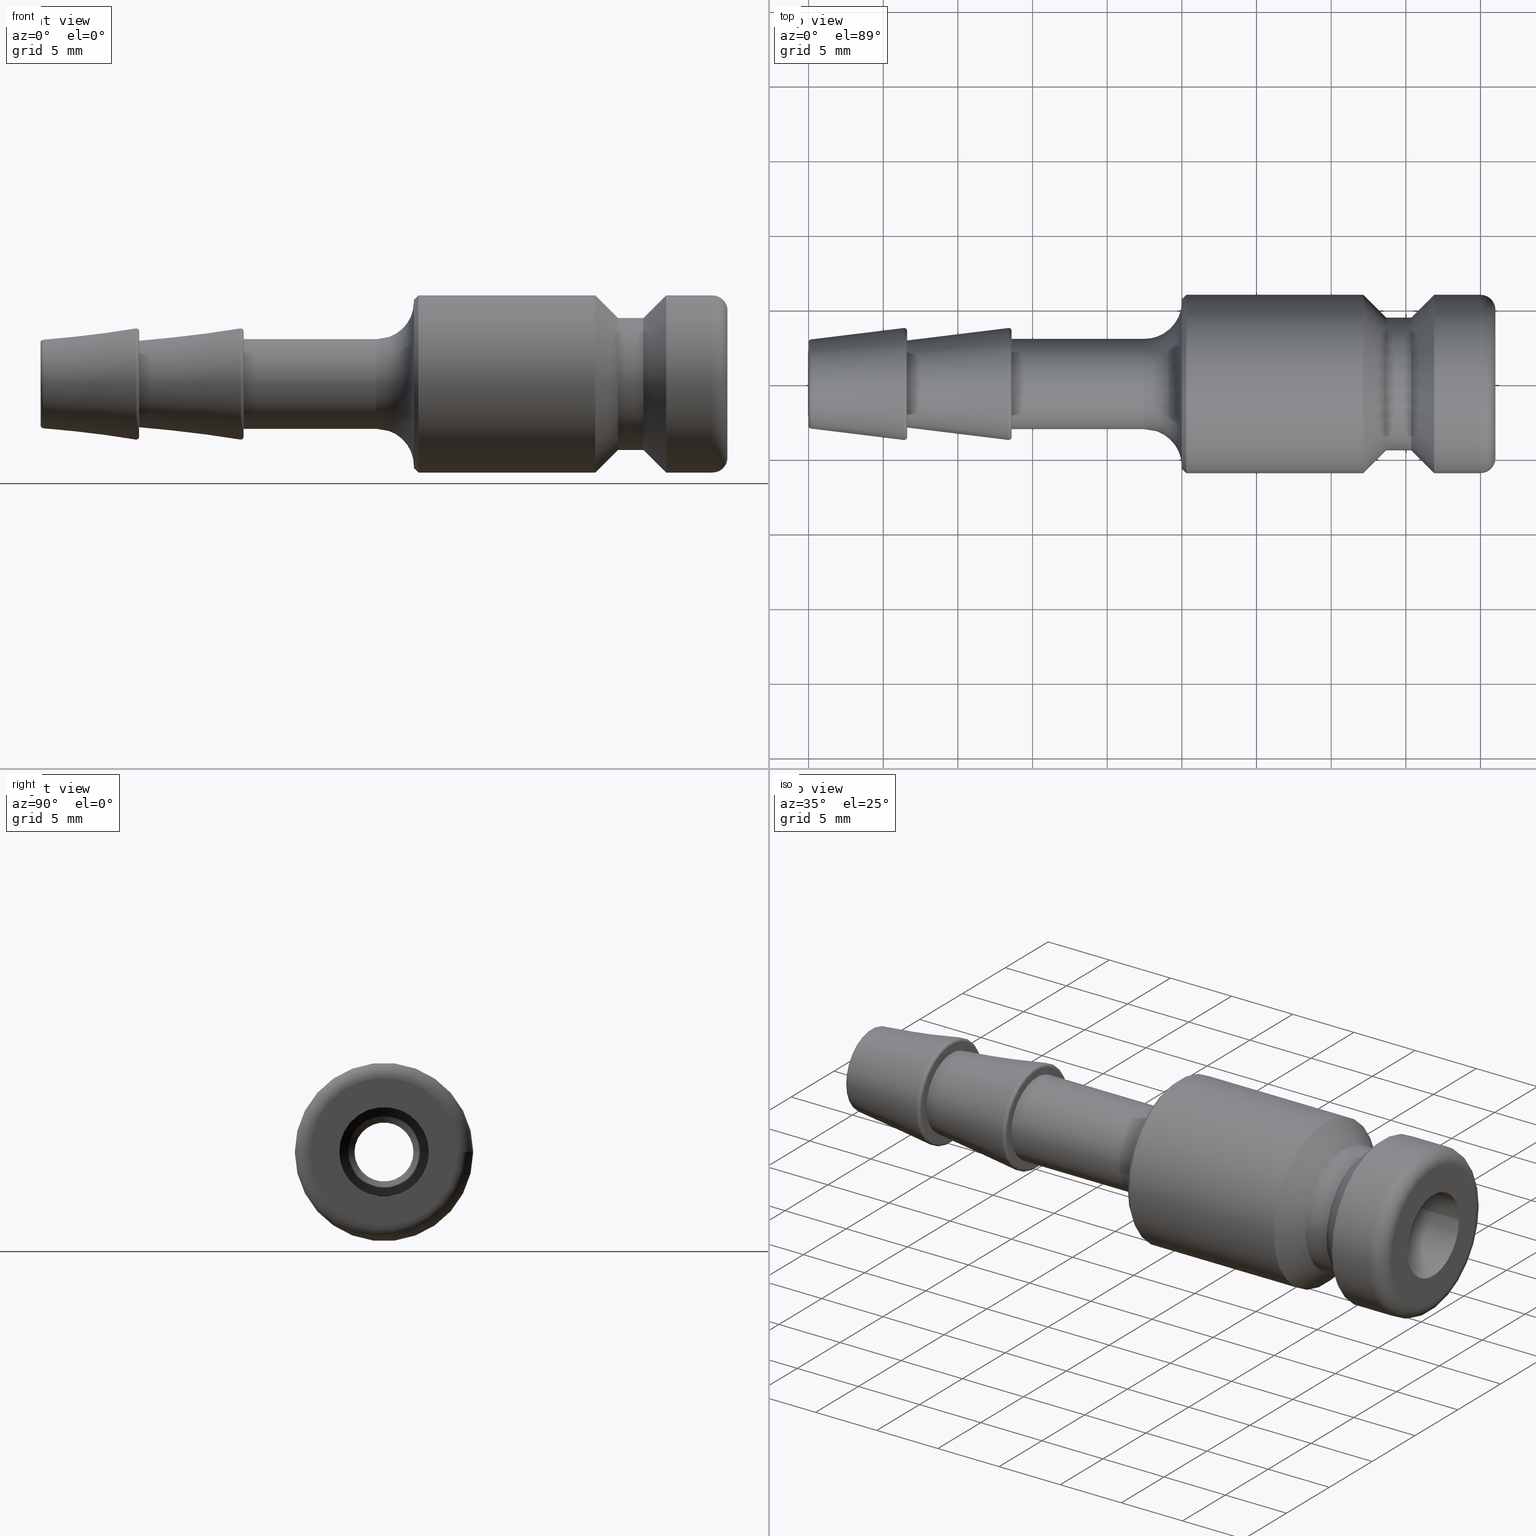
[diagram: canonical four-view strip — front | top / right | iso, engineering-drawing reading convention]
A machine part, canonical four-view strip (front | top / right | iso — engineering-drawing reading convention). The complete STEP part file that produces these views, byte-faithful:
ISO-10303-21;
HEADER;
/****************************************************************
 * Generated by software with PDE/Lib inside                    *
 * PDElib Version v51a, created Thu 01/14/2010                  *
 * ITI Transcendata (http://www.transcendata.com/)              *
 ****************************************************************/
FILE_DESCRIPTION((''),'2;1');
FILE_NAME('J:\\3D Zeichnungen_step\\Serie 52\\52sftf06sxn.stp','2012-12-12T09:20:56',('IA176480'),(''),'Autodesk Inventor 2011','Autodesk Inventor 2011','');
FILE_SCHEMA(('AUTOMOTIVE_DESIGN { 1 0 10303 214 1 1 1 1 }'));
ENDSEC;
DATA;
#5=APPLICATION_CONTEXT('automotive design');
#6=APPLICATION_PROTOCOL_DEFINITION('International Standard','automotive_design',2001,#5);
#7=PRODUCT_CONTEXT('',#5,'mechanical');
#8=PRODUCT('D102768','D102768',$,(#7));
#9=PRODUCT_RELATED_PRODUCT_CATEGORY('part',$,(#8));
#10=PRODUCT_DEFINITION_FORMATION('',$,#8);
#11=PRODUCT_DEFINITION_CONTEXT('part definition',#5,'design');
#12=PRODUCT_DEFINITION('',$,#10,#11);
#18=(NAMED_UNIT(*)PLANE_ANGLE_UNIT()SI_UNIT($,.RADIAN.));
#19=DIMENSIONAL_EXPONENTS(0.0,0.0,0.0,0.0,0.0,0.0,0.0);
#20=PLANE_ANGLE_MEASURE_WITH_UNIT(PLANE_ANGLE_MEASURE(0.017453292500000),#18);
#24=(CONVERSION_BASED_UNIT('DEGREE',#20)NAMED_UNIT(#19)PLANE_ANGLE_UNIT());
#28=(NAMED_UNIT(*)SI_UNIT($,.STERADIAN.)SOLID_ANGLE_UNIT());
#32=(LENGTH_UNIT()NAMED_UNIT(*)SI_UNIT(.MILLI.,.METRE.));
#34=UNCERTAINTY_MEASURE_WITH_UNIT(LENGTH_MEASURE(0.010000000000000),#32,'DISTANCE_ACCURACY_VALUE','');
#36=(GEOMETRIC_REPRESENTATION_CONTEXT(3)GLOBAL_UNCERTAINTY_ASSIGNED_CONTEXT((#34))GLOBAL_UNIT_ASSIGNED_CONTEXT((#24,#28,#32))REPRESENTATION_CONTEXT('None','None'));
#37=AXIS2_PLACEMENT_3D('',#38,#39,#40);
#38=CARTESIAN_POINT('',(0.0,0.0,0.0));
#39=DIRECTION('',(0.0,0.0,1.0));
#40=DIRECTION('',(1.0,0.0,0.0));
#41=SHAPE_REPRESENTATION('',(#37),#36);
#42=PRODUCT_DEFINITION_SHAPE('','',#12);
#43=SHAPE_DEFINITION_REPRESENTATION(#42,#41);
#49=(NAMED_UNIT(*)PLANE_ANGLE_UNIT()SI_UNIT($,.RADIAN.));
#50=DIMENSIONAL_EXPONENTS(0.0,0.0,0.0,0.0,0.0,0.0,0.0);
#51=PLANE_ANGLE_MEASURE_WITH_UNIT(PLANE_ANGLE_MEASURE(0.017453292500000),#49);
#55=(CONVERSION_BASED_UNIT('DEGREE',#51)NAMED_UNIT(#50)PLANE_ANGLE_UNIT());
#59=(NAMED_UNIT(*)SI_UNIT($,.STERADIAN.)SOLID_ANGLE_UNIT());
#63=(LENGTH_UNIT()NAMED_UNIT(*)SI_UNIT(.MILLI.,.METRE.));
#65=UNCERTAINTY_MEASURE_WITH_UNIT(LENGTH_MEASURE(0.000001000000000),#63,'DISTANCE_ACCURACY_VALUE','');
#67=(GEOMETRIC_REPRESENTATION_CONTEXT(3)GLOBAL_UNCERTAINTY_ASSIGNED_CONTEXT((#65))GLOBAL_UNIT_ASSIGNED_CONTEXT((#55,#59,#63))REPRESENTATION_CONTEXT('','3D'));
#68=CARTESIAN_POINT('',(22.500000000000000,2.755455E-015,0.0));
#69=DIRECTION('',(1.0,1.224647E-016,0.0));
#70=DIRECTION('',(0.0,0.0,-1.0));
#71=AXIS2_PLACEMENT_3D('',#68,#69,#70);
#72=TOROIDAL_SURFACE('',#71,5.525000000000000,2.500000000000000);
#73=CARTESIAN_POINT('',(22.500000000000000,3.025000000000003,0.0));
#74=VERTEX_POINT('',#73);
#75=CARTESIAN_POINT('',(22.500000000000000,2.755455E-015,0.0));
#76=DIRECTION('',(1.0,0.0,0.0));
#77=DIRECTION('',(0.0,-1.0,0.0));
#78=AXIS2_PLACEMENT_3D('',#75,#76,#77);
#79=CIRCLE('',#78,3.025000000000000);
#80=EDGE_CURVE('',#74,#74,#79,.T.);
#81=ORIENTED_EDGE('',*,*,#80,.T.);
#82=EDGE_LOOP('',(#81));
#83=FACE_OUTER_BOUND('',#82,.T.);
#84=CARTESIAN_POINT('',(25.0,5.525000000000003,-1.353235E-015));
#85=VERTEX_POINT('',#84);
#86=CARTESIAN_POINT('',(25.0,3.061617E-015,0.0));
#87=DIRECTION('',(-1.0,0.0,0.0));
#88=DIRECTION('',(0.0,-1.0,0.0));
#89=AXIS2_PLACEMENT_3D('',#86,#87,#88);
#90=CIRCLE('',#89,5.525000000000000);
#91=EDGE_CURVE('',#85,#85,#90,.T.);
#92=ORIENTED_EDGE('',*,*,#91,.T.);
#93=EDGE_LOOP('',(#92));
#94=FACE_BOUND('',#93,.T.);
#95=ADVANCED_FACE('',(#83,#94),#72,.F.);
#96=CARTESIAN_POINT('',(25.0,4.500000000000004,0.0));
#97=DIRECTION('',(-1.0,0.0,0.0));
#98=DIRECTION('',(0.0,0.0,1.0));
#99=AXIS2_PLACEMENT_3D('',#96,#97,#98);
#100=PLANE('',#99);
#101=CARTESIAN_POINT('',(25.0,5.675000000000006,6.949871E-016));
#102=VERTEX_POINT('',#101);
#103=CARTESIAN_POINT('',(25.0,3.061617E-015,0.0));
#104=DIRECTION('',(1.0,0.0,0.0));
#105=DIRECTION('',(0.0,-1.0,0.0));
#106=AXIS2_PLACEMENT_3D('',#103,#104,#105);
#107=CIRCLE('',#106,5.675000000000003);
#108=EDGE_CURVE('',#102,#102,#107,.T.);
#109=ORIENTED_EDGE('',*,*,#108,.F.);
#110=EDGE_LOOP('',(#109));
#111=FACE_OUTER_BOUND('',#110,.T.);
#112=ORIENTED_EDGE('',*,*,#91,.F.);
#113=EDGE_LOOP('',(#112));
#114=FACE_BOUND('',#113,.T.);
#115=ADVANCED_FACE('',(#111,#114),#100,.T.);
#116=CARTESIAN_POINT('',(19.300000000000001,2.363568E-015,0.0));
#117=DIRECTION('',(1.0,1.224647E-016,0.0));
#118=DIRECTION('',(0.0,1.0,0.0));
#119=AXIS2_PLACEMENT_3D('',#116,#117,#118);
#120=CYLINDRICAL_SURFACE('',#119,3.025000000000000);
#121=CARTESIAN_POINT('',(13.600000000000001,3.025000000000002,0.0));
#122=VERTEX_POINT('',#121);
#123=CARTESIAN_POINT('',(13.600000000000001,1.665520E-015,0.0));
#124=DIRECTION('',(1.0,0.0,0.0));
#125=DIRECTION('',(0.0,1.0,0.0));
#126=AXIS2_PLACEMENT_3D('',#123,#124,#125);
#127=CIRCLE('',#126,3.025000000000000);
#128=EDGE_CURVE('',#122,#122,#127,.T.);
#129=ORIENTED_EDGE('',*,*,#128,.T.);
#130=EDGE_LOOP('',(#129));
#131=FACE_OUTER_BOUND('',#130,.T.);
#132=ORIENTED_EDGE('',*,*,#80,.F.);
#133=EDGE_LOOP('',(#132));
#134=FACE_BOUND('',#133,.T.);
#135=ADVANCED_FACE('',(#131,#134),#120,.T.);
#136=CARTESIAN_POINT('',(0.200000000000001,2.449294E-017,0.0));
#137=DIRECTION('',(1.0,1.224647E-016,0.0));
#138=DIRECTION('',(0.0,0.0,-1.0));
#139=AXIS2_PLACEMENT_3D('',#136,#137,#138);
#140=TOROIDAL_SURFACE('',#139,2.788735722401991,0.200000000000000);
#141=CARTESIAN_POINT('',(-2.927140E-017,2.788735722401991,0.0));
#142=VERTEX_POINT('',#141);
#143=CARTESIAN_POINT('',(3.122502E-016,1.925930E-032,0.0));
#144=DIRECTION('',(1.0,0.0,0.0));
#145=DIRECTION('',(0.0,-1.0,0.0));
#146=AXIS2_PLACEMENT_3D('',#143,#144,#145);
#147=CIRCLE('',#146,2.788735722401991);
#148=EDGE_CURVE('',#142,#142,#147,.T.);
#149=ORIENTED_EDGE('',*,*,#148,.T.);
#150=EDGE_LOOP('',(#149));
#151=FACE_OUTER_BOUND('',#150,.T.);
#152=CARTESIAN_POINT('',(0.175626131318970,2.987244952730256,-7.316640E-016));
#153=VERTEX_POINT('',#152);
#154=CARTESIAN_POINT('',(0.175626131318971,0.0,-3.658320E-016));
#155=DIRECTION('',(-1.0,0.0,0.0));
#156=DIRECTION('',(0.0,-1.0,0.0));
#157=AXIS2_PLACEMENT_3D('',#154,#155,#156);
#158=CIRCLE('',#157,2.987244952730256);
#159=EDGE_CURVE('',#153,#153,#158,.T.);
#160=ORIENTED_EDGE('',*,*,#159,.T.);
#161=EDGE_LOOP('',(#160));
#162=FACE_BOUND('',#161,.T.);
#163=ADVANCED_FACE('',(#151,#162),#140,.T.);
#164=CARTESIAN_POINT('',(3.187813065659486,3.903945E-016,0.0));
#165=DIRECTION('',(1.0,1.224647E-016,0.0));
#166=DIRECTION('',(0.0,1.0,0.0));
#167=AXIS2_PLACEMENT_3D('',#164,#165,#166);
#168=CONICAL_SURFACE('',#167,3.357095002820722,6.999999999999999);
#169=CARTESIAN_POINT('',(6.375626131318971,3.748509230328265,0.0));
#170=VERTEX_POINT('',#169);
#171=CARTESIAN_POINT('',(6.375626131318971,7.807890E-016,0.0));
#172=DIRECTION('',(1.0,0.0,0.0));
#173=DIRECTION('',(0.0,1.0,0.0));
#174=AXIS2_PLACEMENT_3D('',#171,#172,#173);
#175=CIRCLE('',#174,3.748509230328265);
#176=EDGE_CURVE('',#170,#170,#175,.T.);
#177=ORIENTED_EDGE('',*,*,#176,.F.);
#178=EDGE_LOOP('',(#177));
#179=FACE_OUTER_BOUND('',#178,.T.);
#180=ORIENTED_EDGE('',*,*,#159,.F.);
#181=EDGE_LOOP('',(#180));
#182=FACE_BOUND('',#181,.T.);
#183=ADVANCED_FACE('',(#179,#182),#168,.T.);
#184=CARTESIAN_POINT('',(4.622232E-032,2.470340387656590,0.0));
#185=DIRECTION('',(-1.0,0.0,0.0));
#186=DIRECTION('',(0.0,0.0,1.0));
#187=AXIS2_PLACEMENT_3D('',#184,#185,#186);
#188=PLANE('',#187);
#189=ORIENTED_EDGE('',*,*,#148,.F.);
#190=EDGE_LOOP('',(#189));
#191=FACE_OUTER_BOUND('',#190,.T.);
#192=CARTESIAN_POINT('',(0.0,1.975000000000000,0.0));
#193=VERTEX_POINT('',#192);
#194=CARTESIAN_POINT('',(2.418677E-016,2.962026E-032,0.0));
#195=DIRECTION('',(1.0,0.0,0.0));
#196=DIRECTION('',(0.0,1.0,0.0));
#197=AXIS2_PLACEMENT_3D('',#194,#195,#196);
#198=CIRCLE('',#197,1.975000000000000);
#199=EDGE_CURVE('',#193,#193,#198,.T.);
#200=ORIENTED_EDGE('',*,*,#199,.T.);
#201=EDGE_LOOP('',(#200));
#202=FACE_BOUND('',#201,.T.);
#203=ADVANCED_FACE('',(#191,#202),#188,.T.);
#204=CARTESIAN_POINT('',(25.149999999999999,3.079987E-015,0.0));
#205=DIRECTION('',(1.0,1.224647E-016,0.0));
#206=DIRECTION('',(0.0,-1.0,0.0));
#207=AXIS2_PLACEMENT_3D('',#204,#205,#206);
#208=CONICAL_SURFACE('',#207,5.825000000000003,45.000000000000149);
#209=ORIENTED_EDGE('',*,*,#108,.T.);
#210=EDGE_LOOP('',(#209));
#211=FACE_OUTER_BOUND('',#210,.T.);
#212=CARTESIAN_POINT('',(25.299999999999997,5.975000000000006,-7.317265E-016));
#213=VERTEX_POINT('',#212);
#214=CARTESIAN_POINT('',(25.299999999999997,3.098356E-015,0.0));
#215=DIRECTION('',(-1.0,0.0,0.0));
#216=DIRECTION('',(0.0,-1.0,0.0));
#217=AXIS2_PLACEMENT_3D('',#214,#215,#216);
#218=CIRCLE('',#217,5.975000000000002);
#219=EDGE_CURVE('',#213,#213,#218,.T.);
#220=ORIENTED_EDGE('',*,*,#219,.T.);
#221=EDGE_LOOP('',(#220));
#222=FACE_BOUND('',#221,.T.);
#223=ADVANCED_FACE('',(#211,#222),#208,.T.);
#224=CARTESIAN_POINT('',(31.075000000000003,3.805590E-015,0.0));
#225=DIRECTION('',(1.0,1.224647E-016,0.0));
#226=DIRECTION('',(0.0,1.0,0.0));
#227=AXIS2_PLACEMENT_3D('',#224,#225,#226);
#228=CYLINDRICAL_SURFACE('',#227,5.975000000000002);
#229=CARTESIAN_POINT('',(37.150000000000006,5.975000000000006,0.0));
#230=VERTEX_POINT('',#229);
#231=CARTESIAN_POINT('',(37.150000000000006,4.549563E-015,0.0));
#232=DIRECTION('',(1.0,0.0,0.0));
#233=DIRECTION('',(0.0,1.0,0.0));
#234=AXIS2_PLACEMENT_3D('',#231,#232,#233);
#235=CIRCLE('',#234,5.975000000000001);
#236=EDGE_CURVE('',#230,#230,#235,.T.);
#237=ORIENTED_EDGE('',*,*,#236,.F.);
#238=EDGE_LOOP('',(#237));
#239=FACE_OUTER_BOUND('',#238,.T.);
#240=ORIENTED_EDGE('',*,*,#219,.F.);
#241=EDGE_LOOP('',(#240));
#242=FACE_BOUND('',#241,.T.);
#243=ADVANCED_FACE('',(#239,#242),#228,.T.);
#244=CARTESIAN_POINT('',(45.000000000000007,5.510911E-015,0.0));
#245=DIRECTION('',(1.0,1.224647E-016,0.0));
#246=DIRECTION('',(0.0,0.0,-1.0));
#247=AXIS2_PLACEMENT_3D('',#244,#245,#246);
#248=TOROIDAL_SURFACE('',#247,4.974999999999998,1.0);
#249=CARTESIAN_POINT('',(45.000000000000007,5.975000000000003,0.0));
#250=VERTEX_POINT('',#249);
#251=CARTESIAN_POINT('',(45.000000000000007,5.510911E-015,0.0));
#252=DIRECTION('',(1.0,0.0,0.0));
#253=DIRECTION('',(0.0,-1.0,0.0));
#254=AXIS2_PLACEMENT_3D('',#251,#252,#253);
#255=CIRCLE('',#254,5.974999999999998);
#256=EDGE_CURVE('',#250,#250,#255,.T.);
#257=ORIENTED_EDGE('',*,*,#256,.T.);
#258=EDGE_LOOP('',(#257));
#259=FACE_OUTER_BOUND('',#258,.T.);
#260=CARTESIAN_POINT('',(46.000000000000007,4.975000000000004,-1.218524E-015));
#261=VERTEX_POINT('',#260);
#262=CARTESIAN_POINT('',(46.000000000000007,5.633375E-015,0.0));
#263=DIRECTION('',(-1.0,0.0,0.0));
#264=DIRECTION('',(0.0,-1.0,0.0));
#265=AXIS2_PLACEMENT_3D('',#262,#263,#264);
#266=CIRCLE('',#265,4.974999999999998);
#267=EDGE_CURVE('',#261,#261,#266,.T.);
#268=ORIENTED_EDGE('',*,*,#267,.T.);
#269=EDGE_LOOP('',(#268));
#270=FACE_BOUND('',#269,.T.);
#271=ADVANCED_FACE('',(#259,#270),#248,.T.);
#272=CARTESIAN_POINT('',(43.950000000000003,5.382323E-015,0.0));
#273=DIRECTION('',(1.0,1.224647E-016,0.0));
#274=DIRECTION('',(0.0,1.0,0.0));
#275=AXIS2_PLACEMENT_3D('',#272,#273,#274);
#276=CYLINDRICAL_SURFACE('',#275,5.974999999999998);
#277=CARTESIAN_POINT('',(41.900000000000006,5.975000000000005,0.0));
#278=VERTEX_POINT('',#277);
#279=CARTESIAN_POINT('',(41.900000000000006,5.131270E-015,0.0));
#280=DIRECTION('',(1.0,0.0,0.0));
#281=DIRECTION('',(0.0,1.0,0.0));
#282=AXIS2_PLACEMENT_3D('',#279,#280,#281);
#283=CIRCLE('',#282,5.975000000000000);
#284=EDGE_CURVE('',#278,#278,#283,.T.);
#285=ORIENTED_EDGE('',*,*,#284,.T.);
#286=EDGE_LOOP('',(#285));
#287=FACE_OUTER_BOUND('',#286,.T.);
#288=ORIENTED_EDGE('',*,*,#256,.F.);
#289=EDGE_LOOP('',(#288));
#290=FACE_BOUND('',#289,.T.);
#291=ADVANCED_FACE('',(#287,#290),#276,.T.);
#292=CARTESIAN_POINT('',(46.000000000000007,4.487500000000004,0.0));
#293=DIRECTION('',(1.0,0.0,0.0));
#294=DIRECTION('',(0.0,0.0,-1.0));
#295=AXIS2_PLACEMENT_3D('',#292,#293,#294);
#296=PLANE('',#295);
#297=ORIENTED_EDGE('',*,*,#267,.F.);
#298=EDGE_LOOP('',(#297));
#299=FACE_OUTER_BOUND('',#298,.T.);
#300=CARTESIAN_POINT('',(46.000000000000007,3.000000000000005,0.0));
#301=VERTEX_POINT('',#300);
#302=CARTESIAN_POINT('',(46.000000000000007,5.633375E-015,0.0));
#303=DIRECTION('',(1.0,0.0,0.0));
#304=DIRECTION('',(0.0,1.0,0.0));
#305=AXIS2_PLACEMENT_3D('',#302,#303,#304);
#306=CIRCLE('',#305,2.999999999999999);
#307=EDGE_CURVE('',#301,#301,#306,.T.);
#308=ORIENTED_EDGE('',*,*,#307,.F.);
#309=EDGE_LOOP('',(#308));
#310=FACE_BOUND('',#309,.T.);
#311=ADVANCED_FACE('',(#299,#310),#296,.T.);
#312=CARTESIAN_POINT('',(6.400000000000000,5.551115E-016,0.0));
#313=DIRECTION('',(1.0,1.224647E-016,0.0));
#314=DIRECTION('',(0.0,0.0,-1.0));
#315=AXIS2_PLACEMENT_3D('',#312,#313,#314);
#316=TOROIDAL_SURFACE('',#315,3.550000000000000,0.199999999999999);
#317=CARTESIAN_POINT('',(6.600000000000000,3.550000000000001,0.0));
#318=VERTEX_POINT('',#317);
#319=CARTESIAN_POINT('',(6.600000000000000,8.082669E-016,0.0));
#320=DIRECTION('',(1.0,0.0,0.0));
#321=DIRECTION('',(0.0,1.0,0.0));
#322=AXIS2_PLACEMENT_3D('',#319,#320,#321);
#323=CIRCLE('',#322,3.550000000000000);
#324=EDGE_CURVE('',#318,#318,#323,.T.);
#325=ORIENTED_EDGE('',*,*,#324,.F.);
#326=EDGE_LOOP('',(#325));
#327=FACE_OUTER_BOUND('',#326,.T.);
#328=ORIENTED_EDGE('',*,*,#176,.T.);
#329=EDGE_LOOP('',(#328));
#330=FACE_BOUND('',#329,.T.);
#331=ADVANCED_FACE('',(#327,#330),#316,.T.);
#332=CARTESIAN_POINT('',(6.600000000000000,3.233283475476010,0.0));
#333=DIRECTION('',(1.0,0.0,0.0));
#334=DIRECTION('',(0.0,0.0,-1.0));
#335=AXIS2_PLACEMENT_3D('',#332,#333,#334);
#336=PLANE('',#335);
#337=ORIENTED_EDGE('',*,*,#324,.T.);
#338=EDGE_LOOP('',(#337));
#339=FACE_OUTER_BOUND('',#338,.T.);
#340=CARTESIAN_POINT('',(6.600000000000001,2.916566950952019,0.0));
#341=VERTEX_POINT('',#340);
#342=CARTESIAN_POINT('',(6.600000000000001,8.082669E-016,0.0));
#343=DIRECTION('',(1.0,0.0,0.0));
#344=DIRECTION('',(0.0,1.0,0.0));
#345=AXIS2_PLACEMENT_3D('',#342,#343,#344);
#346=CIRCLE('',#345,2.916566950952018);
#347=EDGE_CURVE('',#341,#341,#346,.T.);
#348=ORIENTED_EDGE('',*,*,#347,.F.);
#349=EDGE_LOOP('',(#348));
#350=FACE_BOUND('',#349,.T.);
#351=ADVANCED_FACE('',(#339,#350),#336,.T.);
#352=CARTESIAN_POINT('',(9.987813065659486,1.223154E-015,0.0));
#353=DIRECTION('',(1.0,1.224647E-016,0.0));
#354=DIRECTION('',(0.0,1.0,0.0));
#355=AXIS2_PLACEMENT_3D('',#352,#353,#354);
#356=CONICAL_SURFACE('',#355,3.332538090640141,7.000000000000005);
#357=CARTESIAN_POINT('',(13.375626131318972,3.748509230328266,0.0));
#358=VERTEX_POINT('',#357);
#359=CARTESIAN_POINT('',(13.375626131318972,1.638042E-015,0.0));
#360=DIRECTION('',(1.0,0.0,0.0));
#361=DIRECTION('',(0.0,1.0,0.0));
#362=AXIS2_PLACEMENT_3D('',#359,#360,#361);
#363=CIRCLE('',#362,3.748509230328265);
#364=EDGE_CURVE('',#358,#358,#363,.T.);
#365=ORIENTED_EDGE('',*,*,#364,.F.);
#366=EDGE_LOOP('',(#365));
#367=FACE_OUTER_BOUND('',#366,.T.);
#368=ORIENTED_EDGE('',*,*,#347,.T.);
#369=EDGE_LOOP('',(#368));
#370=FACE_BOUND('',#369,.T.);
#371=ADVANCED_FACE('',(#367,#370),#356,.T.);
#372=CARTESIAN_POINT('',(13.400000000000000,1.665335E-015,0.0));
#373=DIRECTION('',(1.0,1.224647E-016,0.0));
#374=DIRECTION('',(0.0,0.0,-1.0));
#375=AXIS2_PLACEMENT_3D('',#372,#373,#374);
#376=TOROIDAL_SURFACE('',#375,3.550000000000000,0.199999999999996);
#377=CARTESIAN_POINT('',(13.600000000000001,3.550000000000002,0.0));
#378=VERTEX_POINT('',#377);
#379=CARTESIAN_POINT('',(13.600000000000001,1.665520E-015,0.0));
#380=DIRECTION('',(1.0,0.0,0.0));
#381=DIRECTION('',(0.0,1.0,0.0));
#382=AXIS2_PLACEMENT_3D('',#379,#380,#381);
#383=CIRCLE('',#382,3.550000000000000);
#384=EDGE_CURVE('',#378,#378,#383,.T.);
#385=ORIENTED_EDGE('',*,*,#384,.F.);
#386=EDGE_LOOP('',(#385));
#387=FACE_OUTER_BOUND('',#386,.T.);
#388=ORIENTED_EDGE('',*,*,#364,.T.);
#389=EDGE_LOOP('',(#388));
#390=FACE_BOUND('',#389,.T.);
#391=ADVANCED_FACE('',(#387,#390),#376,.T.);
#392=CARTESIAN_POINT('',(13.600000000000001,3.287500000000002,0.0));
#393=DIRECTION('',(1.0,0.0,0.0));
#394=DIRECTION('',(0.0,0.0,-1.0));
#395=AXIS2_PLACEMENT_3D('',#392,#393,#394);
#396=PLANE('',#395);
#397=ORIENTED_EDGE('',*,*,#384,.T.);
#398=EDGE_LOOP('',(#397));
#399=FACE_OUTER_BOUND('',#398,.T.);
#400=ORIENTED_EDGE('',*,*,#128,.F.);
#401=EDGE_LOOP('',(#400));
#402=FACE_BOUND('',#401,.T.);
#403=ADVANCED_FACE('',(#399,#402),#396,.T.);
#404=CARTESIAN_POINT('',(37.912500000000009,4.642942E-015,0.0));
#405=DIRECTION('',(-1.0,-1.224647E-016,0.0));
#406=DIRECTION('',(0.0,1.0,0.0));
#407=AXIS2_PLACEMENT_3D('',#404,#405,#406);
#408=CONICAL_SURFACE('',#407,5.212500000000001,45.000000000000050);
#409=CARTESIAN_POINT('',(38.675000000000004,4.450000000000006,0.0));
#410=VERTEX_POINT('',#409);
#411=CARTESIAN_POINT('',(38.675000000000004,4.736321E-015,0.0));
#412=DIRECTION('',(1.0,0.0,0.0));
#413=DIRECTION('',(0.0,1.0,0.0));
#414=AXIS2_PLACEMENT_3D('',#411,#412,#413);
#415=CIRCLE('',#414,4.450000000000001);
#416=EDGE_CURVE('',#410,#410,#415,.T.);
#417=ORIENTED_EDGE('',*,*,#416,.F.);
#418=EDGE_LOOP('',(#417));
#419=FACE_OUTER_BOUND('',#418,.T.);
#420=ORIENTED_EDGE('',*,*,#236,.T.);
#421=EDGE_LOOP('',(#420));
#422=FACE_BOUND('',#421,.T.);
#423=ADVANCED_FACE('',(#419,#422),#408,.T.);
#424=CARTESIAN_POINT('',(39.525000000000006,4.840416E-015,0.0));
#425=DIRECTION('',(1.0,1.224647E-016,0.0));
#426=DIRECTION('',(0.0,1.0,0.0));
#427=AXIS2_PLACEMENT_3D('',#424,#425,#426);
#428=CYLINDRICAL_SURFACE('',#427,4.450000000000001);
#429=CARTESIAN_POINT('',(40.375000000000007,4.450000000000006,0.0));
#430=VERTEX_POINT('',#429);
#431=CARTESIAN_POINT('',(40.375000000000007,4.944511E-015,0.0));
#432=DIRECTION('',(1.0,0.0,0.0));
#433=DIRECTION('',(0.0,1.0,0.0));
#434=AXIS2_PLACEMENT_3D('',#431,#432,#433);
#435=CIRCLE('',#434,4.450000000000001);
#436=EDGE_CURVE('',#430,#430,#435,.T.);
#437=ORIENTED_EDGE('',*,*,#436,.F.);
#438=EDGE_LOOP('',(#437));
#439=FACE_OUTER_BOUND('',#438,.T.);
#440=ORIENTED_EDGE('',*,*,#416,.T.);
#441=EDGE_LOOP('',(#440));
#442=FACE_BOUND('',#441,.T.);
#443=ADVANCED_FACE('',(#439,#442),#428,.T.);
#444=CARTESIAN_POINT('',(41.137500000000003,5.037891E-015,0.0));
#445=DIRECTION('',(1.0,1.224647E-016,0.0));
#446=DIRECTION('',(0.0,1.0,0.0));
#447=AXIS2_PLACEMENT_3D('',#444,#445,#446);
#448=CONICAL_SURFACE('',#447,5.212500000000000,45.000000000000007);
#449=ORIENTED_EDGE('',*,*,#284,.F.);
#450=EDGE_LOOP('',(#449));
#451=FACE_OUTER_BOUND('',#450,.T.);
#452=ORIENTED_EDGE('',*,*,#436,.T.);
#453=EDGE_LOOP('',(#452));
#454=FACE_BOUND('',#453,.T.);
#455=ADVANCED_FACE('',(#451,#454),#448,.T.);
#456=CARTESIAN_POINT('',(37.000000000000007,4.531193E-015,0.0));
#457=DIRECTION('',(1.0,1.224647E-016,0.0));
#458=DIRECTION('',(0.0,1.0,0.0));
#459=AXIS2_PLACEMENT_3D('',#456,#457,#458);
#460=CYLINDRICAL_SURFACE('',#459,3.000000000000000);
#461=CARTESIAN_POINT('',(28.000000000000007,3.000000000000005,0.0));
#462=VERTEX_POINT('',#461);
#463=CARTESIAN_POINT('',(28.000000000000007,3.429011E-015,0.0));
#464=DIRECTION('',(1.0,0.0,0.0));
#465=DIRECTION('',(0.0,1.0,0.0));
#466=AXIS2_PLACEMENT_3D('',#463,#464,#465);
#467=CIRCLE('',#466,3.000000000000002);
#468=EDGE_CURVE('',#462,#462,#467,.T.);
#469=ORIENTED_EDGE('',*,*,#468,.F.);
#470=EDGE_LOOP('',(#469));
#471=FACE_OUTER_BOUND('',#470,.T.);
#472=ORIENTED_EDGE('',*,*,#307,.T.);
#473=EDGE_LOOP('',(#472));
#474=FACE_BOUND('',#473,.T.);
#475=ADVANCED_FACE('',(#471,#474),#460,.F.);
#476=CARTESIAN_POINT('',(27.704107987040324,3.392775E-015,0.0));
#477=DIRECTION('',(1.0,1.224647E-016,0.0));
#478=DIRECTION('',(0.0,1.0,0.0));
#479=AXIS2_PLACEMENT_3D('',#476,#477,#478);
#480=CONICAL_SURFACE('',#479,2.487500000000001,59.999999999999929);
#481=CARTESIAN_POINT('',(27.408215974080640,1.975000000000004,0.0));
#482=VERTEX_POINT('',#481);
#483=CARTESIAN_POINT('',(27.408215974080640,3.356538E-015,0.0));
#484=DIRECTION('',(1.0,0.0,0.0));
#485=DIRECTION('',(0.0,1.0,0.0));
#486=AXIS2_PLACEMENT_3D('',#483,#484,#485);
#487=CIRCLE('',#486,1.975000000000000);
#488=EDGE_CURVE('',#482,#482,#487,.T.);
#489=ORIENTED_EDGE('',*,*,#488,.F.);
#490=EDGE_LOOP('',(#489));
#491=FACE_OUTER_BOUND('',#490,.T.);
#492=ORIENTED_EDGE('',*,*,#468,.T.);
#493=EDGE_LOOP('',(#492));
#494=FACE_BOUND('',#493,.T.);
#495=ADVANCED_FACE('',(#491,#494),#480,.F.);
#496=CARTESIAN_POINT('',(13.704107987040320,1.678269E-015,0.0));
#497=DIRECTION('',(1.0,1.224647E-016,0.0));
#498=DIRECTION('',(0.0,1.0,0.0));
#499=AXIS2_PLACEMENT_3D('',#496,#497,#498);
#500=CYLINDRICAL_SURFACE('',#499,1.975000000000000);
#501=ORIENTED_EDGE('',*,*,#199,.F.);
#502=EDGE_LOOP('',(#501));
#503=FACE_OUTER_BOUND('',#502,.T.);
#504=ORIENTED_EDGE('',*,*,#488,.T.);
#505=EDGE_LOOP('',(#504));
#506=FACE_BOUND('',#505,.T.);
#507=ADVANCED_FACE('',(#503,#506),#500,.F.);
#508=CLOSED_SHELL('',(#95,#115,#135,#163,#183,#203,#223,#243,#271,#291,#311,#331,#351,#371,#391,#403,#423,#443,#455,#475,#495,#507));
#509=MANIFOLD_SOLID_BREP('Volumenk\S\vrper1',#508);
#510=COLOUR_RGB('Metall - Stahl',0.639216005802155,0.639216005802155,0.686275005340576);
#511=FILL_AREA_STYLE_COLOUR('Metall - Stahl',#510);
#512=FILL_AREA_STYLE('Metall - Stahl',(#511));
#513=SURFACE_STYLE_FILL_AREA(#512);
#514=SURFACE_SIDE_STYLE('Metall - Stahl',(#513));
#515=SURFACE_STYLE_USAGE(.BOTH.,#514);
#516=PRESENTATION_STYLE_ASSIGNMENT((#515));
#517=STYLED_ITEM('',(#516),#509);
#518=MECHANICAL_DESIGN_GEOMETRIC_PRESENTATION_REPRESENTATION('',(#517),#36);
#519=ADVANCED_BREP_SHAPE_REPRESENTATION('ABSR',(#509),#36);
#520=SHAPE_REPRESENTATION_RELATIONSHIP('SRR','None',#519,#41);
ENDSEC;
END-ISO-10303-21;
